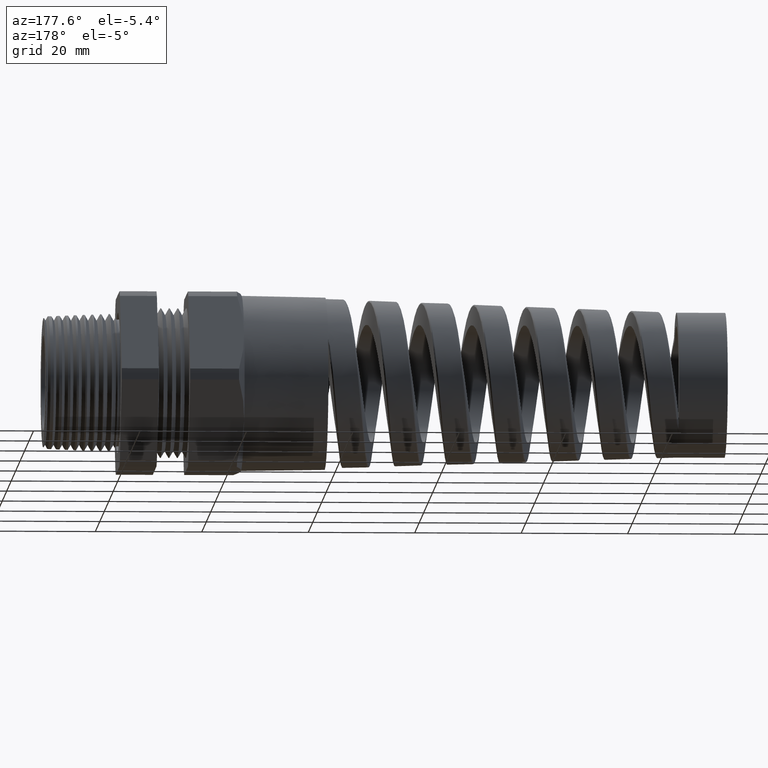
[diagram: clean part render]
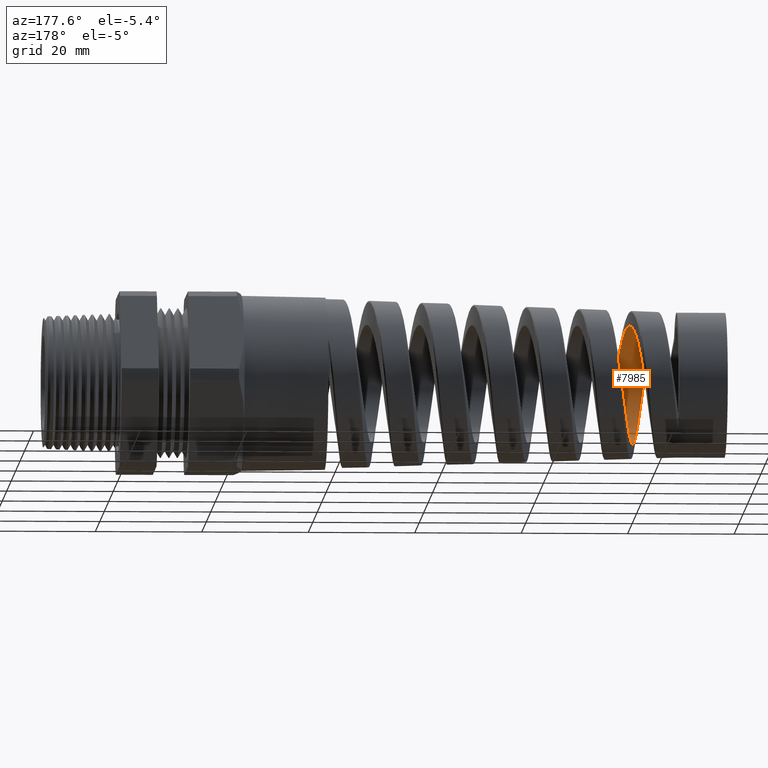
[diagram: same view with one face highlighted and labeled with its STEP entity id]
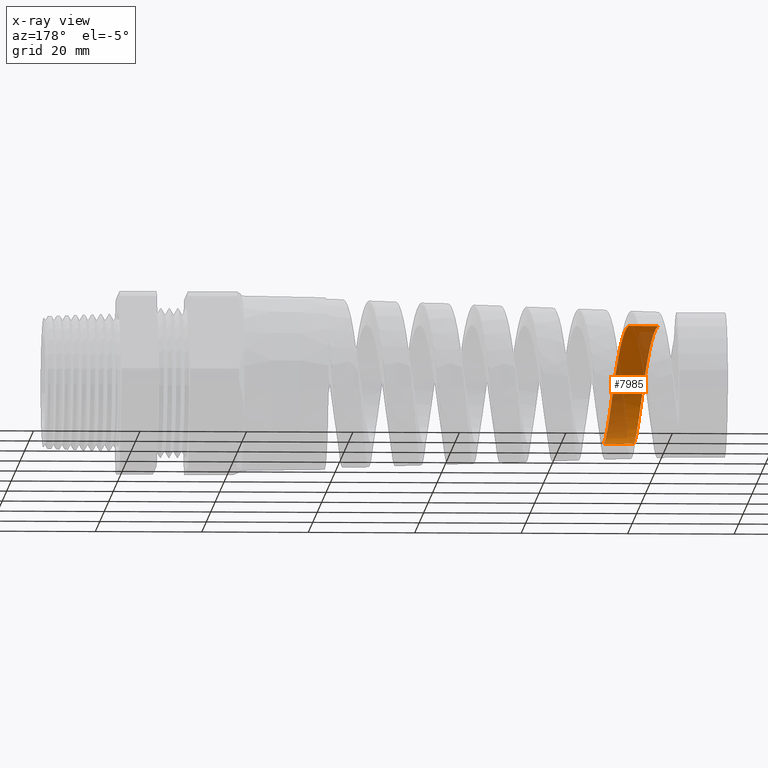
[diagram: x-ray of the same camera — body ghosted, the highlighted face saturated]
A machine part, auxiliary view. The second image highlights one B-rep face of the part: STEP entity #7985.
The next image is the same camera in x-ray: the body ghosted, the highlighted face saturated — about 38% of this face is hidden behind the body in this view.
In plain terms, the highlighted cylindrical surface (partial cylindrical patch) has radius 11.1145 mm, axis along (1, 0, 0).
Its self-contained STEP definition (entity closure, byte-faithful):
#6085 = CARTESIAN_POINT ( 'NONE',  ( -3.918076039099031700, -0.4236104245523483200, 0.1133428928358144600 ) ) ;
#6086 = CARTESIAN_POINT ( 'NONE',  ( -3.922155437293181300, -0.4151461093250353700, 0.1412364177381951500 ) ) ;
#6087 = CARTESIAN_POINT ( 'NONE',  ( -3.930199917188339900, -0.3932361146604218500, 0.1940602378386864500 ) ) ;
#6088 = CARTESIAN_POINT ( 'NONE',  ( -3.934191264961854500, -0.3797988990628065600, 0.2192095219549869700 ) ) ;
#6089 = CARTESIAN_POINT ( 'NONE',  ( -3.940244128282662600, -0.3558861953894083600, 0.2550045746857292400 ) ) ;
#6090 = CARTESIAN_POINT ( 'NONE',  ( -3.942282890069890300, -0.3472368048787355400, 0.2666633168710315600 ) ) ;
#6091 = CARTESIAN_POINT ( 'NONE',  ( -3.946322903772134300, -0.3290019871099885700, 0.2888605471585417000 ) ) ;
#6092 = CARTESIAN_POINT ( 'NONE',  ( -3.948331091379395600, -0.3193946946946866800, 0.2994440606386035700 ) ) ;
#6093 = CARTESIAN_POINT ( 'NONE',  ( -3.954348418542090300, -0.2891377933281070200, 0.3296800749214409700 ) ) ;
#6094 = CARTESIAN_POINT ( 'NONE',  ( -3.958347654653126200, -0.2670666378776170300, 0.3478328362769188600 ) ) ;
#6095 = CARTESIAN_POINT ( 'NONE',  ( -3.966478064030477300, -0.2189819020529032200, 0.3799463088819168800 ) ) ;
#6096 = CARTESIAN_POINT ( 'NONE',  ( -3.970480385947214000, -0.1937439084588785900, 0.3933863421415472700 ) ) ;
#6097 = CARTESIAN_POINT ( 'NONE',  ( -3.976497341430407700, -0.1542251194136672300, 0.4097490747055830800 ) ) ;
#6098 = CARTESIAN_POINT ( 'NONE',  ( -3.978504995688142200, -0.1407706601790811300, 0.4145675140967144400 ) ) ;
#6099 = CARTESIAN_POINT ( 'NONE',  ( -3.982543302473421600, -0.1132890674933473400, 0.4229044687610568100 ) ) ;
#6100 = CARTESIAN_POINT ( 'NONE',  ( -3.984582052243034400, -0.09920531859550399400, 0.4264278804009609100 ) ) ;
#6101 = CARTESIAN_POINT ( 'NONE',  ( -3.990636942882213900, -0.05696825152947258100, 0.4348046659463352700 ) ) ;
#6102 = CARTESIAN_POINT ( 'NONE',  ( -3.994629045634249000, -0.02858847552047989700, 0.4375801833084229100 ) ) ;
#6103 = CARTESIAN_POINT ( 'NONE',  ( -3.998650479674137300, 9.475569499602263800E-013, 0.4375801833083611300 ) ) ;
#6104 = CARTESIAN_POINT ( 'NONE',  ( -3.805312644069086300, 1.493979371535143900E-016, -0.4375801833083611300 ) ) ;
#6105 = B_SPLINE_CURVE_WITH_KNOTS ( 'NONE', 3,
 ( #6103, #6102, #6101, #6100, #6099, #6098, #6097, #6096, #6095, #6094, #6093, #6092, #6091, #6090, #6089, #6088, #6087, #6086, #6085, #6161, #6160, #6159, #6158, #6157, #6156, #6155, #6154, #6153, #6152, #6151, #6150, #6149, #6148, #6147, #6146, #6145, #6144, #6143, #6142, #6141, #6140, #6139, #6138, #6137, #6136, #6135, #6134, #6133 ),
 .UNSPECIFIED., .F., .F.,
 ( 4, 2, 2, 2, 2, 2, 2, 2, 2, 2, 2, 2, 2, 2, 2, 2, 2, 2, 2, 2, 2, 2, 2, 4 ),
 ( 0.02396754025810178500, 0.02615937218005209100, 0.02725528814102724100, 0.02835120410200239100, 0.03054303602395269300, 0.03273486794590299600, 0.03383078390687814500, 0.03492669986785329500, 0.03711853178980359400, 0.03931036371175389300, 0.04150219563370418500, 0.04259811159467933500, 0.04369402755565447700, 0.04478994351662962000, 0.04588585947760476200, 0.04807769139955506100, 0.04917360736053020400, 0.05026952332150534700, 0.05246135524345564600, 0.05355727120443079500, 0.05465318716540594500, 0.05684501908735623700, 0.05794093504833138000, 0.05903685100930652200 ),
 .UNSPECIFIED. ) ;
#6106 = CARTESIAN_POINT ( 'NONE',  ( -3.998650479674137300, 9.475569499602263800E-013, 0.4375801833083611300 ) ) ;
#6113 = DIRECTION ( 'NONE',  ( 0.0000000000000000000, 0.0000000000000000000, -1.000000000000000000 ) ) ;
#6114 = DIRECTION ( 'NONE',  ( 1.000000000000000000, 0.0000000000000000000, 0.0000000000000000000 ) ) ;
#6115 = CARTESIAN_POINT ( 'NONE',  ( 0.4924815508901369000, 0.0000000000000000000, 0.0000000000000000000 ) ) ;
#6116 = AXIS2_PLACEMENT_3D ( 'NONE', #6115, #6114, #6113 ) ;
#6117 = CYLINDRICAL_SURFACE ( 'NONE', #6116, 0.4375801833083611800 ) ;
#6118 = FACE_OUTER_BOUND ( 'NONE', #7976, .T. ) ;
#6133 = CARTESIAN_POINT ( 'NONE',  ( -3.805312644069086300, 1.493979371535143900E-016, -0.4375801833083611300 ) ) ;
#6134 = CARTESIAN_POINT ( 'NONE',  ( -3.807316894651496100, -0.01425331131307657300, -0.4375801833083611800 ) ) ;
#6135 = CARTESIAN_POINT ( 'NONE',  ( -3.809321501104888900, -0.02850750531675872600, -0.4368854160550435500 ) ) ;
#6136 = CARTESIAN_POINT ( 'NONE',  ( -3.813350631730597000, -0.05701497156966411200, -0.4340862099144409100 ) ) ;
#6137 = CARTESIAN_POINT ( 'NONE',  ( -3.815386168756958400, -0.07134488557849036300, -0.4319648065462818300 ) ) ;
#6138 = CARTESIAN_POINT ( 'NONE',  ( -3.821461584074738100, -0.1137037083239361000, -0.4235291765769464400 ) ) ;
#6139 = CARTESIAN_POINT ( 'NONE',  ( -3.825453764452339600, -0.1410042229882149700, -0.4152217534977238900 ) ) ;
#6140 = CARTESIAN_POINT ( 'NONE',  ( -3.831475214699299900, -0.1805669817794063900, -0.3988429535277871500 ) ) ;
#6141 = CARTESIAN_POINT ( 'NONE',  ( -3.833487755949286600, -0.1935216383403346200, -0.3927258346821336200 ) ) ;
#6142 = CARTESIAN_POINT ( 'NONE',  ( -3.837543203898178000, -0.2189485901626299900, -0.3791381286530050000 ) ) ;
#6143 = CARTESIAN_POINT ( 'NONE',  ( -3.839574581104076200, -0.2313443989076034700, -0.3717001303926466000 ) ) ;
#6144 = CARTESIAN_POINT ( 'NONE',  ( -3.845612899978563700, -0.2670327727037211100, -0.3478349022006693200 ) ) ;
#6145 = CARTESIAN_POINT ( 'NONE',  ( -3.849601384385874100, -0.2890726438513174200, -0.3297497655001017100 ) ) ;
#6146 = CARTESIAN_POINT ( 'NONE',  ( -3.855647657585354400, -0.3194798604333348700, -0.2993566547001617100 ) ) ;
#6147 = CARTESIAN_POINT ( 'NONE',  ( -3.857684961845340600, -0.3292196363447934000, -0.2886135488130073300 ) ) ;
#6148 = CARTESIAN_POINT ( 'NONE',  ( -3.861732202057638600, -0.3474642833105708300, -0.2663680186075411700 ) ) ;
#6149 = CARTESIAN_POINT ( 'NONE',  ( -3.863742437538512800, -0.3559788540037711600, -0.2548704140720237700 ) ) ;
#6150 = CARTESIAN_POINT ( 'NONE',  ( -3.869760121158246000, -0.3797428632307164900, -0.2192842840267681400 ) ) ;
#6151 = CARTESIAN_POINT ( 'NONE',  ( -3.873755289913782400, -0.3932293120617168500, -0.1941128123537234400 ) ) ;
#6152 = CARTESIAN_POINT ( 'NONE',  ( -3.879843060267834900, -0.4097931639639719200, -0.1541237954782849500 ) ) ;
#6153 = CARTESIAN_POINT ( 'NONE',  ( -3.881870564740368000, -0.4146457893914022900, -0.1405342620765888700 ) ) ;
#6154 = CARTESIAN_POINT ( 'NONE',  ( -3.885894844333241500, -0.4229383774931082000, -0.1131553724792929800 ) ) ;
#6155 = CARTESIAN_POINT ( 'NONE',  ( -3.887898444915139700, -0.4263981345133517300, -0.09931887013156520700 ) ) ;
#6156 = CARTESIAN_POINT ( 'NONE',  ( -3.891907299214992600, -0.4319580311805063000, -0.07135731482712839900 ) ) ;
#6157 = CARTESIAN_POINT ( 'NONE',  ( -3.893912697728299800, -0.4340581884535041900, -0.05723228653343728800 ) ) ;
#6158 = CARTESIAN_POINT ( 'NONE',  ( -3.897945501820940800, -0.4368739560418375400, -0.02869132478185703100 ) ) ;
#6159 = CARTESIAN_POINT ( 'NONE',  ( -3.899983823312505000, -0.4375859422684637000, -0.01419759806227015800 ) ) ;
#6160 = CARTESIAN_POINT ( 'NONE',  ( -3.906049337166904100, -0.4375685587216685000, 0.02892439442015791500 ) ) ;
#6161 = CARTESIAN_POINT ( 'NONE',  ( -3.910042820712736700, -0.4347506483150415100, 0.05730861135521227900 ) ) ;
#6168 = DIRECTION ( 'NONE',  ( 1.000000000000000000, 0.0000000000000000000, 0.0000000000000000000 ) ) ;
#6169 = VECTOR ( 'NONE', #6168, 39.37007874015748100 ) ;
#6170 = CARTESIAN_POINT ( 'NONE',  ( 0.4924815508901369000, 0.0000000000000000000, -0.4375801833083611800 ) ) ;
#6171 = LINE ( 'NONE', #6170, #6169 ) ;
#6234 = CARTESIAN_POINT ( 'NONE',  ( -3.705380125014013300, -0.4096986022321899000, 0.1543585704428195300 ) ) ;
#6235 = CARTESIAN_POINT ( 'NONE',  ( -3.703364142010398200, -0.4145124075181965100, 0.1409284163778592200 ) ) ;
#6236 = CARTESIAN_POINT ( 'NONE',  ( -3.699312746574329400, -0.4228372713886206500, 0.1135341202191162100 ) ) ;
#6237 = CARTESIAN_POINT ( 'NONE',  ( -3.697266756936818100, -0.4263617193263949400, 0.09949625338513001800 ) ) ;
#6238 = CARTESIAN_POINT ( 'NONE',  ( -3.691151348193931100, -0.4347908803322037000, 0.05712197900948086400 ) ) ;
#6239 = CARTESIAN_POINT ( 'NONE',  ( -3.687132877322362400, -0.4375681242154048100, 0.02872129369744755000 ) ) ;
#6240 = CARTESIAN_POINT ( 'NONE',  ( -3.681076891490986800, -0.4375861546268669000, -0.01408417222511926900 ) ) ;
#6241 = CARTESIAN_POINT ( 'NONE',  ( -3.679053341656330500, -0.4368960004827712200, -0.02838695316978636800 ) ) ;
#6242 = CARTESIAN_POINT ( 'NONE',  ( -3.674976163888365100, -0.4340830147550558400, -0.05706023702428351200 ) ) ;
#6243 = CARTESIAN_POINT ( 'NONE',  ( -3.672930885091545900, -0.4319578188270096800, -0.07137032811076291000 ) ) ;
#6244 = CARTESIAN_POINT ( 'NONE',  ( -3.666852955150916600, -0.4235768204213423700, -0.1134837021378479500 ) ) ;
#6245 = CARTESIAN_POINT ( 'NONE',  ( -3.662839699931232900, -0.4153102334144914700, -0.1407639409702506900 ) ) ;
#6246 = CARTESIAN_POINT ( 'NONE',  ( -3.656760107121070000, -0.3988874756435205100, -0.1804726119302953200 ) ) ;
#6247 = CARTESIAN_POINT ( 'NONE',  ( -3.654712165093207500, -0.3926985982631636700, -0.1935750438690088100 ) ) ;
#6248 = CARTESIAN_POINT ( 'NONE',  ( -3.650639025421777500, -0.3791323936639070000, -0.2189568787716397700 ) ) ;
#6249 = CARTESIAN_POINT ( 'NONE',  ( -3.648615893339522700, -0.3717710802290617500, -0.2312274398528783300 ) ) ;
#6250 = CARTESIAN_POINT ( 'NONE',  ( -3.642559254126535300, -0.3479997628460773700, -0.2668077486298638400 ) ) ;
#6251 = CARTESIAN_POINT ( 'NONE',  ( -3.638540890724693900, -0.3299179897808572900, -0.2888979530614174100 ) ) ;
#6252 = CARTESIAN_POINT ( 'NONE',  ( -3.632420935643759600, -0.2993451254049073800, -0.3194945779359710200 ) ) ;
#6253 = CARTESIAN_POINT ( 'NONE',  ( -3.630379298177083500, -0.2886404776703870300, -0.3291925693624838100 ) ) ;
#6254 = CARTESIAN_POINT ( 'NONE',  ( -3.626329659765020100, -0.2665225117923362700, -0.3473425165181581200 ) ) ;
#6255 = CARTESIAN_POINT ( 'NONE',  ( -3.624313095292473800, -0.2550665951496269800, -0.3558378269174361000 ) ) ;
#6256 = CARTESIAN_POINT ( 'NONE',  ( -3.620279130273512000, -0.2313718343919203300, -0.3716807787290924400 ) ) ;
#6257 = CARTESIAN_POINT ( 'NONE',  ( -3.618261964622676400, -0.2191329685639662700, -0.3790284475819391000 ) ) ;
#6258 = CARTESIAN_POINT ( 'NONE',  ( -3.614206708694457100, -0.1938614683032674800, -0.3925551593029089100 ) ) ;
#6259 = CARTESIAN_POINT ( 'NONE',  ( -3.612157331793707000, -0.1807536284657154100, -0.3987622018341036000 ) ) ;
#6260 = CARTESIAN_POINT ( 'NONE',  ( -3.606053420283198200, -0.1409012908012470500, -0.4152712932992386200 ) ) ;
#6261 = CARTESIAN_POINT ( 'NONE',  ( -3.602034450871454600, -0.1136032912655238600, -0.4235399228435116100 ) ) ;
#6262 = CARTESIAN_POINT ( 'NONE',  ( -3.595973617789312500, -0.07159914004476568300, -0.4319187646654705800 ) ) ;
#6263 = CARTESIAN_POINT ( 'NONE',  ( -3.593947951682735700, -0.05742033193438701700, -0.4340363625982747200 ) ) ;
#6264 = CARTESIAN_POINT ( 'NONE',  ( -3.589864765650450500, -0.02869924129202703500, -0.4368764266085528600 ) ) ;
#6265 = CARTESIAN_POINT ( 'NONE',  ( -3.587827372099205500, -0.01429903616666650300, -0.4375801833083781700 ) ) ;
#6266 = CARTESIAN_POINT ( 'NONE',  ( -3.585803848155849800, 5.235693392669812600E-013, -0.4375801833083612400 ) ) ;
#6267 = B_SPLINE_CURVE_WITH_KNOTS ( 'NONE', 3,
 ( #6266, #6265, #6264, #6263, #6262, #6261, #6260, #6259, #6258, #6257, #6256, #6255, #6254, #6253, #6252, #6251, #6250, #6249, #6248, #6247, #6246, #6245, #6244, #6243, #6242, #6241, #6240, #6239, #6238, #6237, #6236, #6235, #6234, #6314, #6313, #6312, #6311, #6310, #6309, #6308, #6307, #6306, #6305, #6304, #6303, #6302, #6301, #6300, #6299, #6298, #6297, #6296 ),
 .UNSPECIFIED., .F., .F.,
 ( 4, 2, 2, 2, 2, 2, 2, 2, 2, 2, 2, 2, 2, 2, 2, 2, 2, 2, 2, 2, 2, 2, 2, 2, 2, 4 ),
 ( 0.4215916563774616500, 0.4226884052514252600, 0.4237851541253889200, 0.4259786518733161800, 0.4270754007472797900, 0.4281721496212434500, 0.4292688984952071100, 0.4303656473691707100, 0.4325591451170979800, 0.4336558939910616400, 0.4347526428650252400, 0.4369461406129525000, 0.4380428894869161600, 0.4391396383608797700, 0.4413331361088070300, 0.4424298849827706900, 0.4435266338567343000, 0.4446233827306979600, 0.4457201316046615600, 0.4479136293525888800, 0.4490103782265524900, 0.4501071271005161500, 0.4523006248484434100, 0.4533973737224070700, 0.4544941225963706800, 0.4566876203442979400 ),
 .UNSPECIFIED. ) ;
#6270 = CARTESIAN_POINT ( 'NONE',  ( -3.585803848155849800, 5.235693392669812600E-013, -0.4375801833083612400 ) ) ;
#6291 = DIRECTION ( 'NONE',  ( 1.000000000000000000, 0.0000000000000000000, 0.0000000000000000000 ) ) ;
#6292 = VECTOR ( 'NONE', #6291, 39.37007874015748100 ) ;
#6293 = CARTESIAN_POINT ( 'NONE',  ( 0.4924815508901369000, 5.358811708588965500E-017, 0.4375801833083611800 ) ) ;
#6294 = LINE ( 'NONE', #6293, #6292 ) ;
#6295 = CARTESIAN_POINT ( 'NONE',  ( -3.780334688658390600, -8.913427747218488800E-014, 0.4375801833083611800 ) ) ;
#6296 = CARTESIAN_POINT ( 'NONE',  ( -3.780334688658390600, -8.913427747218488800E-014, 0.4375801833083611800 ) ) ;
#6297 = CARTESIAN_POINT ( 'NONE',  ( -3.776251989383324800, -0.02885258978118043400, 0.4375801833083557400 ) ) ;
#6298 = CARTESIAN_POINT ( 'NONE',  ( -3.772232835287724100, -0.05726521866271248200, 0.4347535680039925100 ) ) ;
#6299 = CARTESIAN_POINT ( 'NONE',  ( -3.766178200193160300, -0.09922986405012064500, 0.4264190887365403300 ) ) ;
#6300 = CARTESIAN_POINT ( 'NONE',  ( -3.764155893881546700, -0.1131082892757774800, 0.4229536421316948400 ) ) ;
#6301 = CARTESIAN_POINT ( 'NONE',  ( -3.760084333612153900, -0.1406373587835730900, 0.4146135571948164600 ) ) ;
#6302 = CARTESIAN_POINT ( 'NONE',  ( -3.758034708751363700, -0.1542887811793195200, 0.4097276086654245100 ) ) ;
#6303 = CARTESIAN_POINT ( 'NONE',  ( -3.751952497032441200, -0.1940010888107296900, 0.3932699991985955700 ) ) ;
#6304 = CARTESIAN_POINT ( 'NONE',  ( -3.747939559932444100, -0.2191409361442578900, 0.3798322801734818600 ) ) ;
#6305 = CARTESIAN_POINT ( 'NONE',  ( -3.741864556129596700, -0.2548421403470833000, 0.3560008762074099400 ) ) ;
#6306 = CARTESIAN_POINT ( 'NONE',  ( -3.739821213324679300, -0.2664553208584677400, 0.3473985192903837900 ) ) ;
#6307 = CARTESIAN_POINT ( 'NONE',  ( -3.735740976421955600, -0.2887391146965966300, 0.3291107607830009400 ) ) ;
#6308 = CARTESIAN_POINT ( 'NONE',  ( -3.733716501714076800, -0.2993480378630019000, 0.3194852693901063000 ) ) ;
#6309 = CARTESIAN_POINT ( 'NONE',  ( -3.727659238604920300, -0.3296196920087287000, 0.2892091780810665500 ) ) ;
#6310 = CARTESIAN_POINT ( 'NONE',  ( -3.723642266633904200, -0.3477416857053614600, 0.2671719387199982800 ) ) ;
#6311 = CARTESIAN_POINT ( 'NONE',  ( -3.717530507723177300, -0.3717451101653927400, 0.2312772511303400600 ) ) ;
#6312 = CARTESIAN_POINT ( 'NONE',  ( -3.715482388714532300, -0.3791904578547577500, 0.2188517778854651200 ) ) ;
#6313 = CARTESIAN_POINT ( 'NONE',  ( -3.711428870592835300, -0.3926886142125624000, 0.1935901760925566000 ) ) ;
#6314 = CARTESIAN_POINT ( 'NONE',  ( -3.709412521234644700, -0.3987867063381071400, 0.1806894457021918400 ) ) ;
#7976 = EDGE_LOOP ( 'NONE', ( #7990, #7994, #8024, #8012 ) ) ;
#7985 = ADVANCED_FACE ( 'NONE', ( #6118 ), #6117, .F. ) ;
#7990 = ORIENTED_EDGE ( 'NONE', *, *, #7991, .F. ) ;
#7991 = EDGE_CURVE ( 'NONE', #7992, #7993, #6105, .T. ) ;
#7992 = VERTEX_POINT ( 'NONE', #6106 ) ;
#7993 = VERTEX_POINT ( 'NONE', #6104 ) ;
#7994 = ORIENTED_EDGE ( 'NONE', *, *, #8023, .T. ) ;
#8012 = ORIENTED_EDGE ( 'NONE', *, *, #8013, .F. ) ;
#8013 = EDGE_CURVE ( 'NONE', #7993, #8020, #6171, .T. ) ;
#8018 = EDGE_CURVE ( 'NONE', #8020, #8022, #6267, .T. ) ;
#8020 = VERTEX_POINT ( 'NONE', #6270 ) ;
#8022 = VERTEX_POINT ( 'NONE', #6295 ) ;
#8023 = EDGE_CURVE ( 'NONE', #7992, #8022, #6294, .T. ) ;
#8024 = ORIENTED_EDGE ( 'NONE', *, *, #8018, .F. ) ;